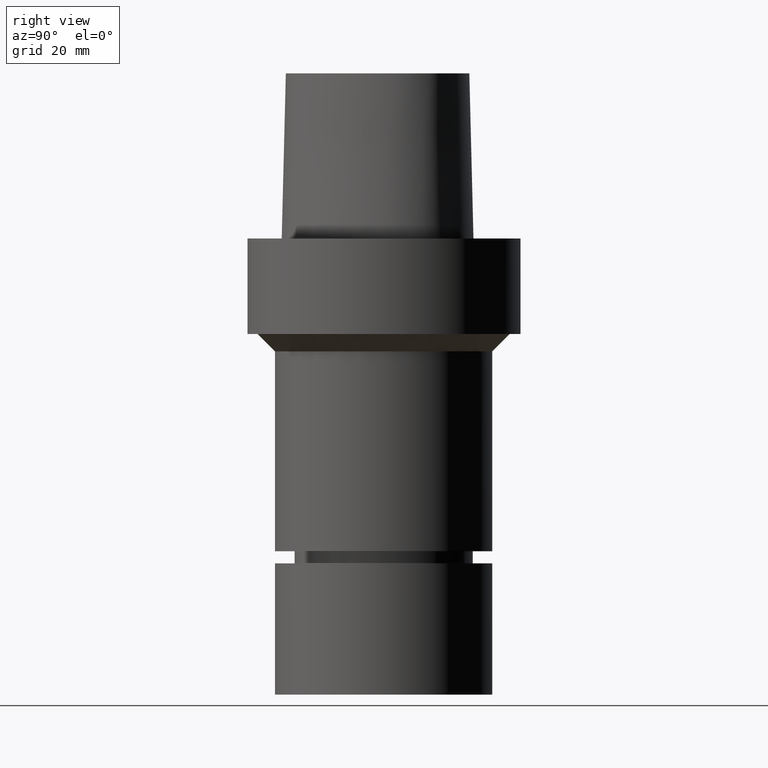
[diagram: clean part render]
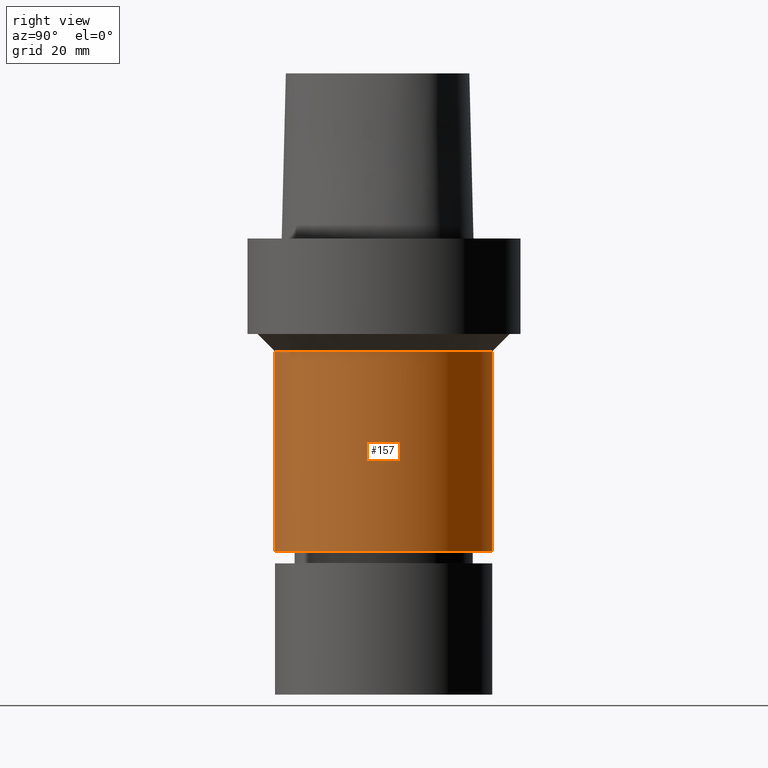
[diagram: same view with one face highlighted and labeled with its STEP entity id]
A machine part, right view. The second image highlights one B-rep face of the part: STEP entity #157.
In plain terms, the highlighted cylindrical surface (bore or boss wall) has radius 25 mm, axis along (0, 0, -1).
Its self-contained STEP definition (entity closure, byte-faithful):
#96=EDGE_CURVE('Unnamed[1]',#229,#229,#230,.T.);
#151=EDGE_CURVE('Unnamed[1]',#308,#308,#309,.T.);
#157=ADVANCED_FACE('Unnamed[1]',(#317,#318),#319,.T.);
#229=VERTEX_POINT('',#413);
#230=CIRCLE('',#414,25.0);
#308=VERTEX_POINT('',#684);
#309=CIRCLE('',#685,24.9999999999999);
#317=FACE_BOUND('',#695,.T.);
#318=FACE_BOUND('',#696,.T.);
#319=CYLINDRICAL_SURFACE('',#697,25.0);
#413=CARTESIAN_POINT('',(4.40873812527377E-015,25.0,-72.0001575694037));
#414=AXIS2_PLACEMENT_3D('',#779,#780,#781);
#684=CARTESIAN_POINT('',(1.59204083889159E-015,24.9999999999999,-26.0000000000006));
#685=AXIS2_PLACEMENT_3D('',#859,#860,#861);
#695=EDGE_LOOP('',(#869));
#696=EDGE_LOOP('',(#870));
#697=AXIS2_PLACEMENT_3D('',#871,#872,#873);
#779=CARTESIAN_POINT('',(4.40873812527377E-015,8.81747625054753E-015,-72.0001575694037));
#780=DIRECTION('',(6.12323399573677E-017,1.22464679914735E-016,-1.0));
#781=DIRECTION('',(-1.23259516440783E-032,1.0,1.22464679914735E-016));
#859=CARTESIAN_POINT('',(1.59204083889159E-015,3.18408167778319E-015,-26.0000000000006));
#860=DIRECTION('',(6.12323399573677E-017,1.22464679914735E-016,-1.0));
#861=DIRECTION('',(-1.23259516440783E-032,1.0,1.22464679914735E-016));
#869=ORIENTED_EDGE('',*,*,#96,.F.);
#870=ORIENTED_EDGE('',*,*,#151,.T.);
#871=CARTESIAN_POINT('',(3.00038948208268E-015,6.00077896416536E-015,-49.0000787847021));
#872=DIRECTION('',(6.12323399573677E-017,1.22464679914735E-016,-1.0));
#873=DIRECTION('',(-1.23259516440783E-032,1.0,1.22464679914735E-016));